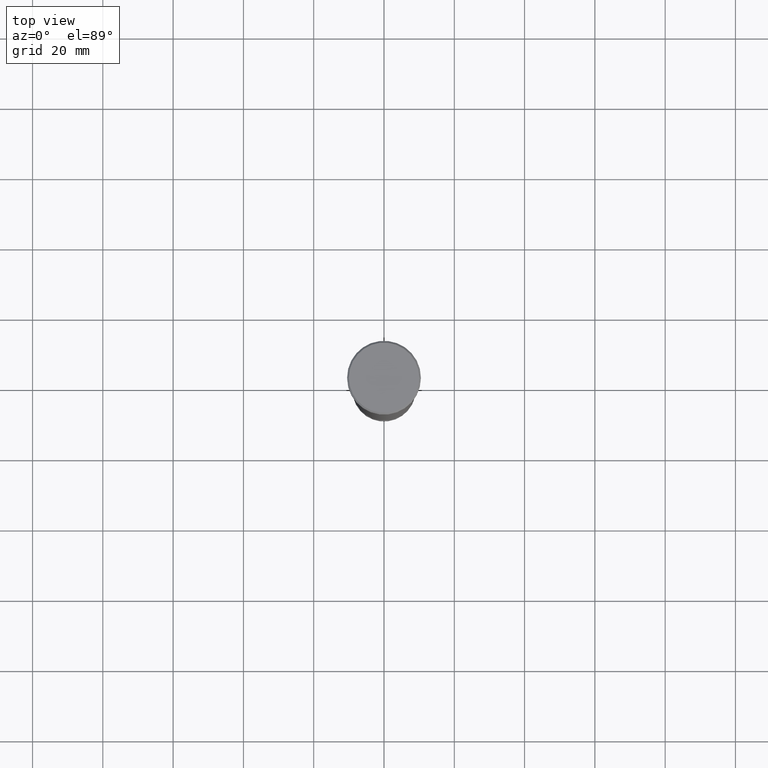
[diagram: clean part render]
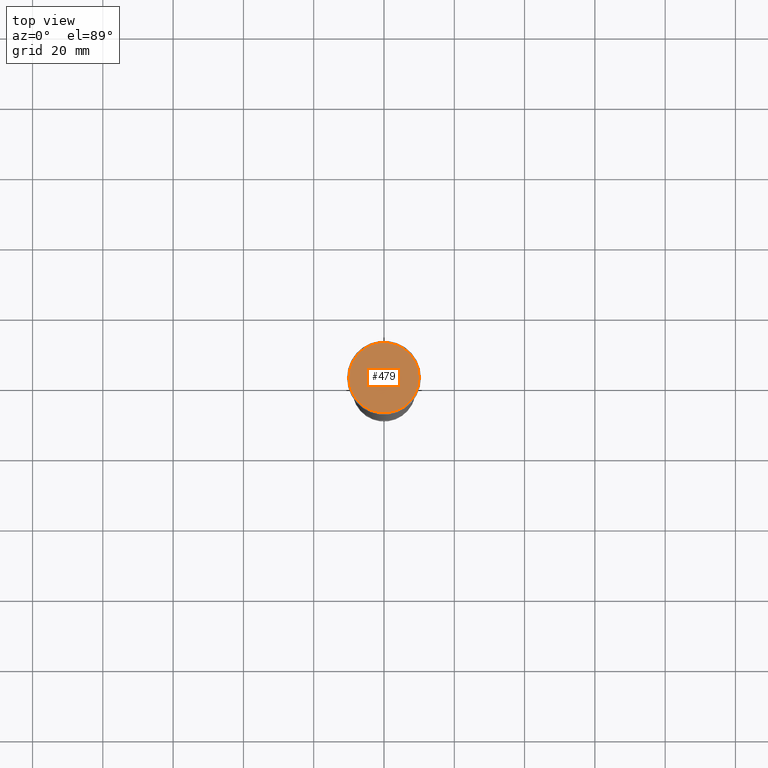
[diagram: same view with one face highlighted and labeled with its STEP entity id]
A machine part, top view. The second image highlights one B-rep face of the part: STEP entity #479.
In plain terms, the highlighted planar face has unit normal (0, -0, 1).
Its self-contained STEP definition (entity closure, byte-faithful):
#16 = DIRECTION ( 'NONE',  ( 0.000000000000000000, -0.000000000000000000, 1.000000000000000000 ) ) ;
#104 = CARTESIAN_POINT ( 'NONE',  ( 0.000000000000000000, 0.000000000000000000, 0.000000000000000000 ) ) ;
#118 = CARTESIAN_POINT ( 'NONE',  ( 0.000000000000000000, 0.000000000000000000, 0.000000000000000000 ) ) ;
#122 = CARTESIAN_POINT ( 'NONE',  ( -10.00000000000000533, 0.000000000000000000, 0.000000000000000000 ) ) ;
#182 = DIRECTION ( 'NONE',  ( -0.000000000000000000, -0.000000000000000000, 1.000000000000000000 ) ) ;
#185 = ORIENTED_EDGE ( 'NONE', *, *, #729, .T. ) ;
#203 = CARTESIAN_POINT ( 'NONE',  ( 0.000000000000000000, 0.000000000000000000, 0.000000000000000000 ) ) ;
#225 = VERTEX_POINT ( 'NONE', #122 ) ;
#295 = DIRECTION ( 'NONE',  ( -0.000000000000000000, -0.000000000000000000, 1.000000000000000000 ) ) ;
#388 = DIRECTION ( 'NONE',  ( 1.000000000000000000, 0.000000000000000000, 0.000000000000000000 ) ) ;
#417 = AXIS2_PLACEMENT_3D ( 'NONE', #104, #182, #640 ) ;
#458 = CIRCLE ( 'NONE', #417, 10.00000000000000533 ) ;
#479 = ADVANCED_FACE ( 'NONE', ( #816 ), #561, .T. ) ;
#561 = PLANE ( 'NONE',  #1049 ) ;
#579 = EDGE_LOOP ( 'NONE', ( #1101, #185 ) ) ;
#640 = DIRECTION ( 'NONE',  ( 1.000000000000000000, 0.000000000000000000, 0.000000000000000000 ) ) ;
#653 = DIRECTION ( 'NONE',  ( 1.000000000000000000, 0.000000000000000000, 0.000000000000000000 ) ) ;
#729 = EDGE_CURVE ( 'NONE', #1043, #225, #458, .T. ) ;
#816 = FACE_OUTER_BOUND ( 'NONE', #579, .T. ) ;
#845 = CIRCLE ( 'NONE', #995, 10.00000000000000533 ) ;
#864 = CARTESIAN_POINT ( 'NONE',  ( 10.00000000000000533, 1.255262969126037241E-15, 0.000000000000000000 ) ) ;
#965 = EDGE_CURVE ( 'NONE', #225, #1043, #845, .T. ) ;
#995 = AXIS2_PLACEMENT_3D ( 'NONE', #118, #295, #388 ) ;
#1043 = VERTEX_POINT ( 'NONE', #864 ) ;
#1049 = AXIS2_PLACEMENT_3D ( 'NONE', #203, #16, #653 ) ;
#1101 = ORIENTED_EDGE ( 'NONE', *, *, #965, .T. ) ;